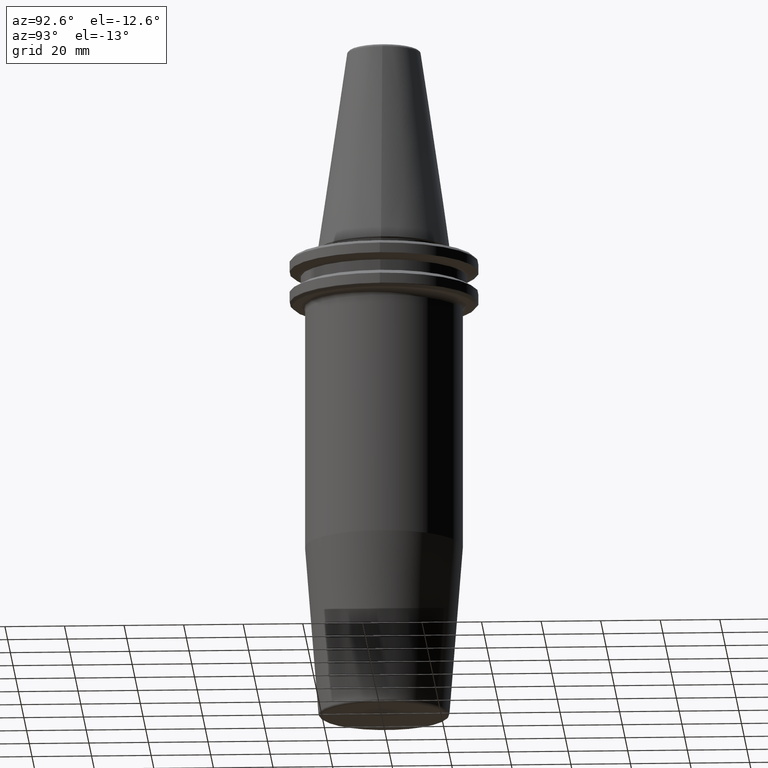
[diagram: clean part render]
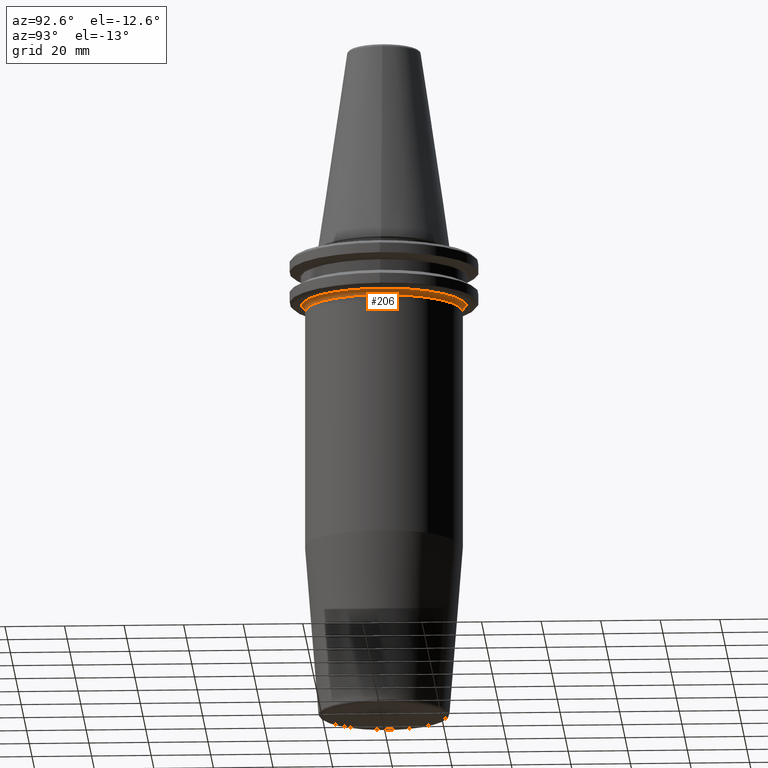
[diagram: same view with one face highlighted and labeled with its STEP entity id]
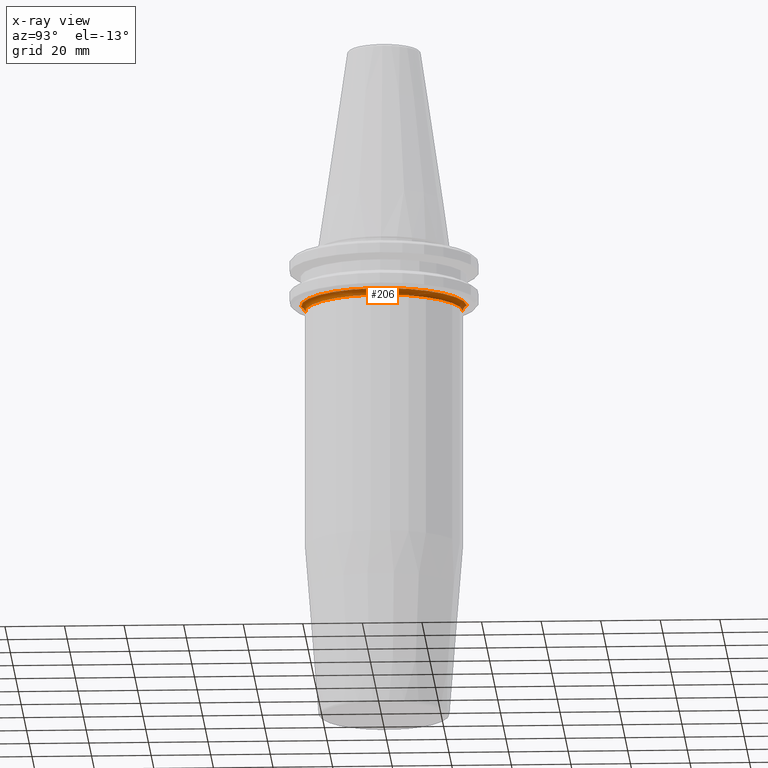
[diagram: x-ray of the same camera — body ghosted, the highlighted face saturated]
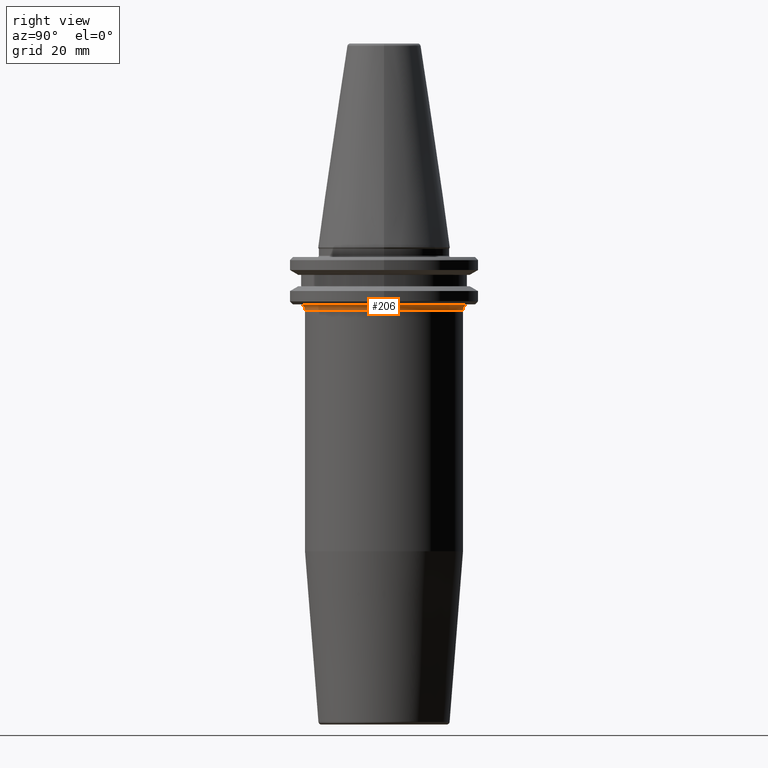
[diagram: same view with one face highlighted and labeled with its STEP entity id]
A machine part, auxiliary view. The second image highlights one B-rep face of the part: STEP entity #206.
The next image is the same camera in x-ray: the body ghosted, the highlighted face saturated — about 0% of this face is hidden behind the body in this view.
A second angle (right view) of the same face is appended — the face is thin or edge-on in the first view.
In plain terms, the highlighted toroidal blend (fillet) surface has major radius 28.5 mm and minor (blend) radius 2 mm.
Its self-contained STEP definition (entity closure, byte-faithful):
#22 = VERTEX_POINT ( 'NONE', #1085 ) ;
#94 = CARTESIAN_POINT ( 'NONE',  ( 0.0000000000000000000, 28.49999999999999600, -20.98284271247460400 ) ) ;
#98 = CARTESIAN_POINT ( 'NONE',  ( 0.0000000000000000000, -1.734723475976807100E-014, -19.10000000000000500 ) ) ;
#152 = CARTESIAN_POINT ( 'NONE',  ( 3.407645211460943300E-015, -27.82553478956937500, -19.10000000000000500 ) ) ;
#155 = ORIENTED_EDGE ( 'NONE', *, *, #726, .T. ) ;
#159 = TOROIDAL_SURFACE ( 'NONE', #1014, 28.50000000000001400, 2.000000000000000000 ) ;
#176 = DIRECTION ( 'NONE',  ( -0.0000000000000000000, 1.256330602389183300E-016, -1.000000000000000000 ) ) ;
#191 = CARTESIAN_POINT ( 'NONE',  ( 0.0000000000000000000, 26.49999999999999600, -20.98284271247460400 ) ) ;
#199 = DIRECTION ( 'NONE',  ( 1.000000000000000000, 0.0000000000000000000, 0.0000000000000000000 ) ) ;
#205 = DIRECTION ( 'NONE',  ( -1.000000000000000000, 0.0000000000000000000, 0.0000000000000000000 ) ) ;
#206 = ADVANCED_FACE ( 'NONE', ( #1181 ), #159, .F. ) ;
#229 = VERTEX_POINT ( 'NONE', #152 ) ;
#259 = DIRECTION ( 'NONE',  ( 0.0000000000000000000, 1.000000000000000000, 1.256330602389183300E-016 ) ) ;
#275 = AXIS2_PLACEMENT_3D ( 'NONE', #94, #205, #339 ) ;
#328 = DIRECTION ( 'NONE',  ( 1.000000000000000000, 1.224646799147353200E-016, 1.538561250886779500E-032 ) ) ;
#339 = DIRECTION ( 'NONE',  ( 0.0000000000000000000, 0.0000000000000000000, 1.000000000000000000 ) ) ;
#347 = VERTEX_POINT ( 'NONE', #1144 ) ;
#379 = DIRECTION ( 'NONE',  ( -1.224646799147351500E-016, 1.000000000000000000, 0.0000000000000000000 ) ) ;
#420 = DIRECTION ( 'NONE',  ( -0.0000000000000000000, 1.256330602389183300E-016, -1.000000000000000000 ) ) ;
#580 = CIRCLE ( 'NONE', #600, 26.50000000000001400 ) ;
#600 = AXIS2_PLACEMENT_3D ( 'NONE', #1002, #420, #1091 ) ;
#634 = ORIENTED_EDGE ( 'NONE', *, *, #1049, .F. ) ;
#664 = CARTESIAN_POINT ( 'NONE',  ( 3.490243377569958000E-015, -28.50000000000003200, -20.98284271247461100 ) ) ;
#703 = CIRCLE ( 'NONE', #275, 1.999999999999998200 ) ;
#726 = EDGE_CURVE ( 'NONE', #931, #347, #703, .T. ) ;
#729 = ORIENTED_EDGE ( 'NONE', *, *, #947, .T. ) ;
#730 = CARTESIAN_POINT ( 'NONE',  ( 0.0000000000000000000, -1.734723475976807100E-014, -20.98284271247460700 ) ) ;
#779 = DIRECTION ( 'NONE',  ( 0.0000000000000000000, 0.0000000000000000000, -1.000000000000000000 ) ) ;
#798 = EDGE_LOOP ( 'NONE', ( #1116, #634, #155, #729 ) ) ;
#804 = EDGE_CURVE ( 'NONE', #22, #229, #870, .T. ) ;
#870 = CIRCLE ( 'NONE', #917, 2.000000000000001800 ) ;
#917 = AXIS2_PLACEMENT_3D ( 'NONE', #664, #328, #379 ) ;
#931 = VERTEX_POINT ( 'NONE', #191 ) ;
#947 = EDGE_CURVE ( 'NONE', #347, #229, #1186, .T. ) ;
#1002 = CARTESIAN_POINT ( 'NONE',  ( 0.0000000000000000000, -1.701835490922485000E-014, -20.98284271247460700 ) ) ;
#1014 = AXIS2_PLACEMENT_3D ( 'NONE', #730, #176, #259 ) ;
#1049 = EDGE_CURVE ( 'NONE', #931, #22, #580, .T. ) ;
#1078 = AXIS2_PLACEMENT_3D ( 'NONE', #98, #779, #199 ) ;
#1085 = CARTESIAN_POINT ( 'NONE',  ( 3.245314017740488100E-015, -26.50000000000003200, -20.98284271247461100 ) ) ;
#1091 = DIRECTION ( 'NONE',  ( 0.0000000000000000000, 1.000000000000000000, 1.309225264888155600E-016 ) ) ;
#1116 = ORIENTED_EDGE ( 'NONE', *, *, #804, .F. ) ;
#1144 = CARTESIAN_POINT ( 'NONE',  ( 0.0000000000000000000, 27.82553478956932500, -19.10000000000000500 ) ) ;
#1181 = FACE_OUTER_BOUND ( 'NONE', #798, .T. ) ;
#1186 = CIRCLE ( 'NONE', #1078, 27.82553478956935000 ) ;